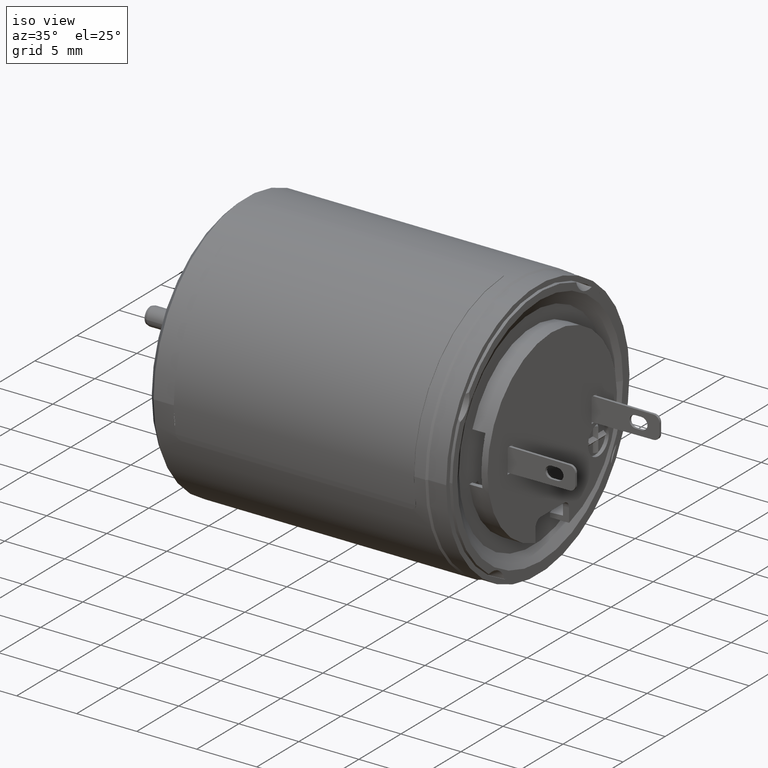
[diagram: clean part render]
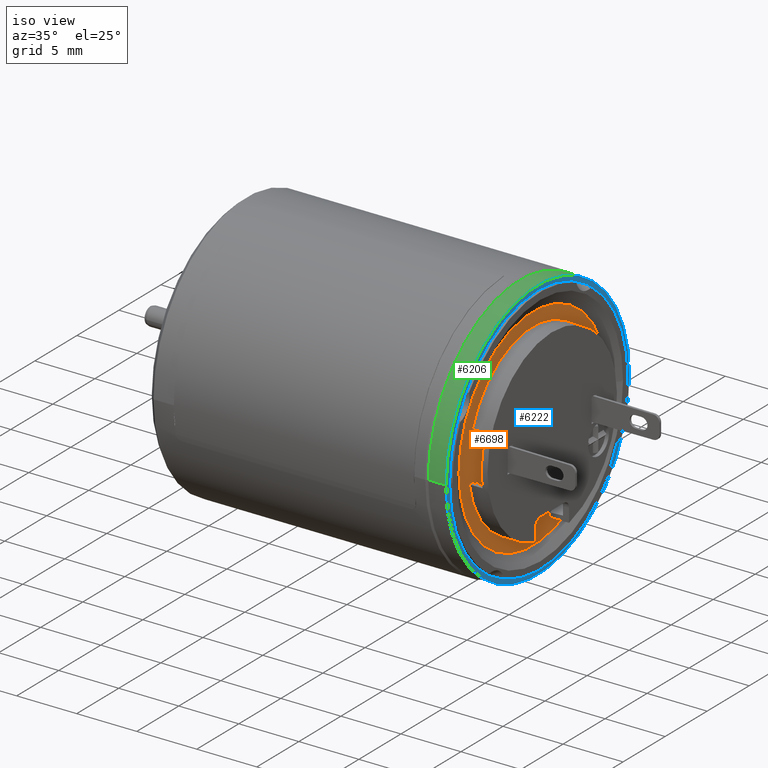
[diagram: same view with three faces highlighted in distinct colors, each labeled with its STEP entity id]
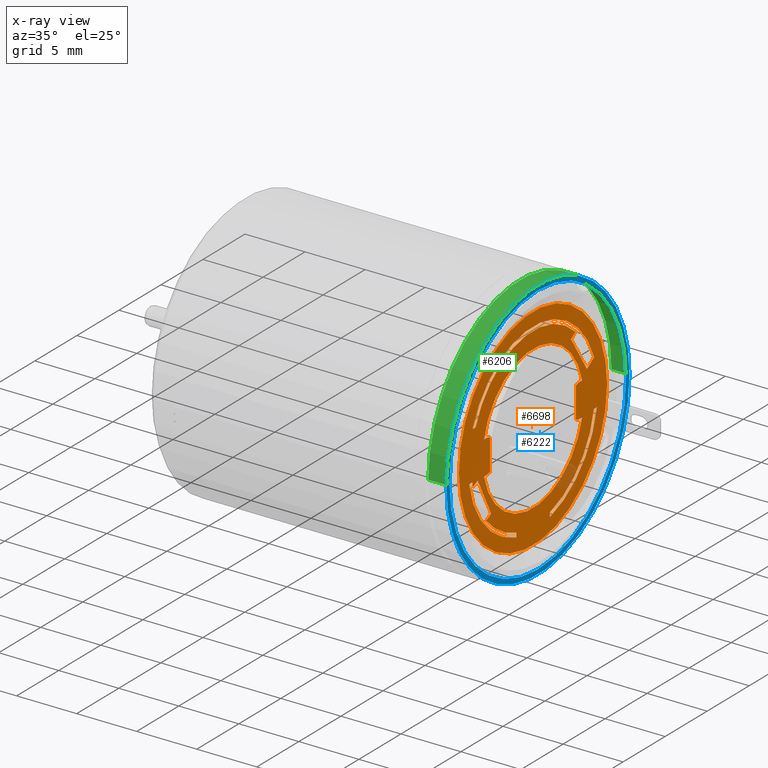
[diagram: x-ray of the same camera — body ghosted, the three highlighted faces saturated]
A machine part, iso view with three faces highlighted in distinct colors.
The next image is the same camera in x-ray (body ghosted, the three faces saturated) — at least one of them is partly hidden behind the body in this view.
Their STEP definitions:

[orange] entity #6698 — the highlighted planar face has unit normal (1, 0, 0).
#961=CARTESIAN_POINT('',(8.5E0,1.120551821217E-14,0.E0));
#962=DIRECTION('',(-1.E0,0.E0,0.E0));
#963=DIRECTION('',(0.E0,-1.E0,0.E0));
#964=AXIS2_PLACEMENT_3D('',#961,#962,#963);
#966=CARTESIAN_POINT('',(8.5E0,1.120551821217E-14,0.E0));
#967=DIRECTION('',(-1.E0,0.E0,0.E0));
#968=DIRECTION('',(0.E0,1.E0,0.E0));
#969=AXIS2_PLACEMENT_3D('',#966,#967,#968);
#971=CARTESIAN_POINT('',(8.5E0,1.044976660676E-13,0.E0));
#972=DIRECTION('',(1.E0,-1.005529260564E-14,0.E0));
#973=DIRECTION('',(0.E0,9.728982300885E-1,2.312337213528E-1));
#974=AXIS2_PLACEMENT_3D('',#971,#972,#973);
#976=CARTESIAN_POINT('',(8.5E0,-5.65E0,0.E0));
#977=DIRECTION('',(-1.E0,0.E0,0.E0));
#978=DIRECTION('',(0.E0,-1.338495575221E-1,9.910016629406E-1));
#979=AXIS2_PLACEMENT_3D('',#976,#977,#978);
#981=DIRECTION('',(0.E0,1.E0,8.696237837936E-13));
#982=VECTOR('',#981,3.038475772916E-2);
#983=CARTESIAN_POINT('',(8.5E0,-5.130384757729E0,1.3E0));
#984=LINE('',#983,#982);
#985=DIRECTION('',(0.E0,0.E0,-1.E0));
#986=VECTOR('',#985,2.6E0);
#987=CARTESIAN_POINT('',(8.5E0,-5.1E0,1.3E0));
#988=LINE('',#987,#986);
#989=CARTESIAN_POINT('',(8.5E0,-5.65E0,0.E0));
#990=DIRECTION('',(-1.E0,0.E0,0.E0));
#991=DIRECTION('',(0.E0,3.711537444793E-1,-9.285714285713E-1));
#992=AXIS2_PLACEMENT_3D('',#989,#990,#991);
#994=CARTESIAN_POINT('',(8.5E0,-5.65E0,0.E0));
#995=DIRECTION('',(-1.E0,0.E0,0.E0));
#996=DIRECTION('',(0.E0,0.E0,-1.E0));
#997=AXIS2_PLACEMENT_3D('',#994,#995,#996);
#999=CARTESIAN_POINT('',(8.5E0,1.044976660676E-13,0.E0));
#1000=DIRECTION('',(1.E0,-1.005529260564E-14,0.E0));
#1001=DIRECTION('',(0.E0,-9.728982300885E-1,-2.312337213528E-1));
#1002=AXIS2_PLACEMENT_3D('',#999,#1000,#1001);
#1004=CARTESIAN_POINT('',(8.5E0,5.65E0,0.E0));
#1005=DIRECTION('',(-1.E0,0.E0,0.E0));
#1006=DIRECTION('',(0.E0,1.338495575222E-1,-9.910016629406E-1));
#1007=AXIS2_PLACEMENT_3D('',#1004,#1005,#1006);
#1009=CARTESIAN_POINT('',(8.5E0,5.65E0,0.E0));
#1010=DIRECTION('',(-1.E0,0.E0,0.E0));
#1011=DIRECTION('',(0.E0,0.E0,-1.E0));
#1012=AXIS2_PLACEMENT_3D('',#1009,#1010,#1011);
#1014=CARTESIAN_POINT('',(8.5E0,5.65E0,0.E0));
#1015=DIRECTION('',(-1.E0,0.E0,0.E0));
#1016=DIRECTION('',(0.E0,-3.711537444793E-1,9.285714285713E-1));
#1017=AXIS2_PLACEMENT_3D('',#1014,#1015,#1016);
#1019=CARTESIAN_POINT('',(8.5E0,1.120551821220E-14,0.E0));
#1020=DIRECTION('',(1.E0,0.E0,0.E0));
#1021=DIRECTION('',(0.E0,2.597402597403E-1,-9.656785166245E-1));
#1022=AXIS2_PLACEMENT_3D('',#1019,#1020,#1021);
#1024=DIRECTION('',(0.E0,-1.E0,0.E0));
#1025=VECTOR('',#1024,3.475748986508E-1);
#1026=CARTESIAN_POINT('',(8.5E0,7.589466384404E0,-1.3E0));
#1027=LINE('',#1026,#1025);
#1028=CARTESIAN_POINT('',(8.5E0,0.E0,0.E0));
#1029=DIRECTION('',(1.E0,0.E0,0.E0));
#1030=DIRECTION('',(0.E0,2.718259759825E-1,-9.623464234781E-1));
#1031=AXIS2_PLACEMENT_3D('',#1028,#1029,#1030);
#1033=DIRECTION('',(0.E0,0.E0,-1.E0));
#1034=VECTOR('',#1033,3.551178037676E-1);
#1035=CARTESIAN_POINT('',(8.5E0,2.E0,-7.080606774241E0));
#1036=LINE('',#1035,#1034);
#1037=CARTESIAN_POINT('',(8.5E0,1.120551821220E-14,0.E0));
#1038=DIRECTION('',(1.E0,0.E0,0.E0));
#1039=DIRECTION('',(0.E0,9.365068247958E-1,3.506493506494E-1));
#1040=AXIS2_PLACEMENT_3D('',#1037,#1038,#1039);
#1042=DIRECTION('',(0.E0,1.E0,1.331919927738E-14));
#1043=VECTOR('',#1042,3.667623861329E-1);
#1044=CARTESIAN_POINT('',(8.5E0,-7.211102550928E0,2.7E0));
#1045=LINE('',#1044,#1043);
#1046=CARTESIAN_POINT('',(8.5E0,0.E0,0.E0));
#1047=DIRECTION('',(1.E0,0.E0,0.E0));
#1048=DIRECTION('',(0.E0,6.884869095566E-1,7.252487679199E-1));
#1049=AXIS2_PLACEMENT_3D('',#1046,#1047,#1048);
#1051=DIRECTION('',(0.E0,8.412277974367E-1,5.406808604157E-1));
#1052=VECTOR('',#1051,5.936586777669E-2);
#1053=CARTESIAN_POINT('',(8.5E0,5.015704498565E0,5.304027562436E0));
#1054=LINE('',#1053,#1052);
#1055=DIRECTION('',(0.E0,-8.412277974359E-1,-5.406808604169E-1));
#1056=VECTOR('',#1055,5.871362340511E-1);
#1057=CARTESIAN_POINT('',(8.5E0,5.015704498565E0,5.304027562436E0));
#1058=LINE('',#1057,#1056);
#1059=DIRECTION('',(0.E0,5.406808604177E-1,-8.412277974354E-1));
#1060=VECTOR('',#1059,3.5E0);
#1061=CARTESIAN_POINT('',(8.5E0,4.521789177599E0,4.986574238227E0));
#1062=LINE('',#1061,#1060);
#1063=DIRECTION('',(0.E0,8.412277974357E-1,5.406808604172E-1));
#1064=VECTOR('',#1063,9.984998499699E-1);
#1065=CARTESIAN_POINT('',(8.5E0,6.414172189061E0,2.042276947203E0));
#1066=LINE('',#1065,#1064);
#1067=CARTESIAN_POINT('',(8.5E0,0.E0,0.E0));
#1068=DIRECTION('',(1.E0,0.E0,0.E0));
#1069=DIRECTION('',(0.E0,9.420958465703E-1,3.353437279495E-1));
#1070=AXIS2_PLACEMENT_3D('',#1067,#1068,#1069);
#1072=CARTESIAN_POINT('',(8.5E0,1.120551821220E-14,0.E0));
#1073=DIRECTION('',(1.E0,0.E0,0.E0));
#1074=DIRECTION('',(0.E0,-9.856449849875E-1,-1.688311688312E-1));
#1075=AXIS2_PLACEMENT_3D('',#1072,#1073,#1074);
#1077=DIRECTION('',(0.E0,0.E0,1.E0));
#1078=VECTOR('',#1077,3.551178037676E-1);
#1079=CARTESIAN_POINT('',(8.5E0,-2.E0,-7.435724578009E0));
#1080=LINE('',#1079,#1078);
#1081=CARTESIAN_POINT('',(8.5E0,0.E0,0.E0));
#1082=DIRECTION('',(1.E0,0.E0,0.E0));
#1083=DIRECTION('',(0.E0,-7.563155603722E-1,-6.542069803502E-1));
#1084=AXIS2_PLACEMENT_3D('',#1081,#1082,#1083);
#1086=DIRECTION('',(0.E0,-8.902128046112E-1,-4.555449072334E-1));
#1087=VECTOR('',#1086,2.314629271805E-1);
#1088=CARTESIAN_POINT('',(8.5E0,-5.35865283E0,-4.707983287400E0));
#1089=LINE('',#1088,#1087);
#1090=DIRECTION('',(0.E0,8.902128046106E-1,4.555449072346E-1));
#1091=VECTOR('',#1090,4.150391746472E-1);
#1092=CARTESIAN_POINT('',(8.5E0,-5.35865283E0,-4.707983287400E0));
#1093=LINE('',#1092,#1091);
#1094=DIRECTION('',(0.E0,-4.555449072335E-1,8.902128046111E-1));
#1095=VECTOR('',#1094,3.5E0);
#1096=CARTESIAN_POINT('',(8.5E0,-4.989179642314E0,-4.518914305087E0));
#1097=LINE('',#1096,#1095);
#1098=DIRECTION('',(0.E0,-8.902128046109E-1,-4.555449072340E-1));
#1099=VECTOR('',#1098,5.871362340511E-1);
#1100=CARTESIAN_POINT('',(8.5E0,-6.583586817631E0,-1.403169488948E0));
#1101=LINE('',#1100,#1099);
#1102=DIRECTION('',(0.E0,8.902128046114E-1,4.555449072330E-1));
#1103=VECTOR('',#1102,5.936586777664E-2);
#1104=CARTESIAN_POINT('',(8.5E0,-7.159111266886E0,-1.697680228952E0));
#1105=LINE('',#1104,#1103);
#1106=CARTESIAN_POINT('',(8.5E0,0.E0,0.E0));
#1107=DIRECTION('',(1.E0,0.E0,0.E0));
#1108=DIRECTION('',(0.E0,-9.842671105371E-1,-1.766868843886E-1));
#1109=AXIS2_PLACEMENT_3D('',#1106,#1107,#1108);
#1111=DIRECTION('',(0.E0,-1.E0,0.E0));
#1112=VECTOR('',#1111,3.475748986507E-1);
#1113=CARTESIAN_POINT('',(8.5E0,-7.241891485753E0,-1.3E0));
#1114=LINE('',#1113,#1112);
#3726=DIRECTION('',(0.E0,1.E0,1.103472196243E-12));
#3727=VECTOR('',#3726,3.038475772914E-2);
#3728=CARTESIAN_POINT('',(8.5E0,5.1E0,-1.3E0));
#3729=LINE('',#3728,#3727);
#3738=DIRECTION('',(0.E0,0.E0,-1.E0));
#3739=VECTOR('',#3738,2.6E0);
#3740=CARTESIAN_POINT('',(8.5E0,5.1E0,1.3E0));
#3741=LINE('',#3740,#3739);
#3758=DIRECTION('',(0.E0,-1.E0,4.238502475643E-13));
#3759=VECTOR('',#3758,3.038475772908E-2);
#3760=CARTESIAN_POINT('',(8.5E0,5.130384757729E0,1.3E0));
#3761=LINE('',#3760,#3759);
#3809=DIRECTION('',(0.E0,1.E0,1.753863093367E-13));
#3810=VECTOR('',#3809,3.038475772913E-2);
#3811=CARTESIAN_POINT('',(8.5E0,-5.130384757729E0,-1.3E0));
#3812=LINE('',#3811,#3810);
#4384=CARTESIAN_POINT('',(8.5E0,-5.837389380531E0,1.387402328117E0));
#4385=CARTESIAN_POINT('',(8.5E0,-5.130384757729E0,1.3E0));
#4386=VERTEX_POINT('',#4384);
#4387=VERTEX_POINT('',#4385);
#4388=CARTESIAN_POINT('',(8.5E0,-5.1E0,1.3E0));
#4389=VERTEX_POINT('',#4388);
#4390=CARTESIAN_POINT('',(8.5E0,-5.1E0,-1.3E0));
#4391=VERTEX_POINT('',#4390);
#4392=CARTESIAN_POINT('',(8.5E0,-5.130384757729E0,-1.3E0));
#4393=VERTEX_POINT('',#4392);
#4394=CARTESIAN_POINT('',(8.5E0,-5.65E0,-1.4E0));
#4395=VERTEX_POINT('',#4394);
#4396=CARTESIAN_POINT('',(8.5E0,-5.837389380531E0,-1.387402328117E0));
#4397=VERTEX_POINT('',#4396);
#4398=CARTESIAN_POINT('',(8.5E0,5.837389380531E0,-1.387402328117E0));
#4399=CARTESIAN_POINT('',(8.5E0,5.65E0,-1.4E0));
#4400=VERTEX_POINT('',#4398);
#4401=VERTEX_POINT('',#4399);
#4402=CARTESIAN_POINT('',(8.5E0,5.130384757729E0,-1.3E0));
#4403=VERTEX_POINT('',#4402);
#4404=CARTESIAN_POINT('',(8.5E0,5.1E0,-1.3E0));
#4405=VERTEX_POINT('',#4404);
#4406=CARTESIAN_POINT('',(8.5E0,5.1E0,1.3E0));
#4407=VERTEX_POINT('',#4406);
#4408=CARTESIAN_POINT('',(8.5E0,5.130384757729E0,1.3E0));
#4409=VERTEX_POINT('',#4408);
#4410=CARTESIAN_POINT('',(8.5E0,5.837389380531E0,1.387402328117E0));
#4411=VERTEX_POINT('',#4410);
#4412=CARTESIAN_POINT('',(8.5E0,4.521789177599E0,4.986574238227E0));
#4413=CARTESIAN_POINT('',(8.5E0,6.414172189061E0,2.042276947203E0));
#4414=VERTEX_POINT('',#4412);
#4415=VERTEX_POINT('',#4413);
#4416=CARTESIAN_POINT('',(8.5E0,7.254138018591E0,2.582146705211E0));
#4417=VERTEX_POINT('',#4416);
#4418=CARTESIAN_POINT('',(8.5E0,-4.989179642314E0,-4.518914305087E0));
#4419=CARTESIAN_POINT('',(8.5E0,-6.583586817631E0,-1.403169488948E0));
#4420=VERTEX_POINT('',#4418);
#4421=VERTEX_POINT('',#4419);
#4422=CARTESIAN_POINT('',(8.5E0,8.810769515459E0,0.E0));
#4424=VERTEX_POINT('',#4422);
#4426=CARTESIAN_POINT('',(8.5E0,-8.810769515459E0,0.E0));
#4427=VERTEX_POINT('',#4426);
#5036=CARTESIAN_POINT('',(8.5E0,2.E0,-7.435724578009E0));
#5037=CARTESIAN_POINT('',(8.5E0,7.589466384404E0,-1.3E0));
#5038=VERTEX_POINT('',#5036);
#5039=VERTEX_POINT('',#5037);
#5040=CARTESIAN_POINT('',(8.5E0,7.211102550928E0,2.7E0));
#5041=CARTESIAN_POINT('',(8.5E0,-7.211102550928E0,2.7E0));
#5042=VERTEX_POINT('',#5040);
#5043=VERTEX_POINT('',#5041);
#5044=CARTESIAN_POINT('',(8.5E0,-7.589466384404E0,-1.3E0));
#5045=CARTESIAN_POINT('',(8.5E0,-2.E0,-7.435724578009E0));
#5046=VERTEX_POINT('',#5044);
#5047=VERTEX_POINT('',#5045);
#5048=CARTESIAN_POINT('',(8.5E0,-5.564704091569E0,-4.813425045091E0));
#5049=CARTESIAN_POINT('',(8.5E0,-2.E0,-7.080606774241E0));
#5050=VERTEX_POINT('',#5048);
#5051=VERTEX_POINT('',#5049);
#5052=CARTESIAN_POINT('',(8.5E0,-7.241891485753E0,-1.3E0));
#5053=CARTESIAN_POINT('',(8.5E0,-7.159111266886E0,-1.697680228952E0));
#5054=VERTEX_POINT('',#5052);
#5055=VERTEX_POINT('',#5053);
#5056=CARTESIAN_POINT('',(8.5E0,5.065644716757E0,5.336125550904E0));
#5057=CARTESIAN_POINT('',(8.5E0,-6.844340164795E0,2.7E0));
#5058=VERTEX_POINT('',#5056);
#5059=VERTEX_POINT('',#5057);
#5060=CARTESIAN_POINT('',(8.5E0,2.E0,-7.080606774241E0));
#5061=CARTESIAN_POINT('',(8.5E0,7.241891485753E0,-1.3E0));
#5062=VERTEX_POINT('',#5060);
#5063=VERTEX_POINT('',#5061);
#5064=CARTESIAN_POINT('',(8.5E0,-5.35865283E0,-4.707983287400E0));
#5065=VERTEX_POINT('',#5064);
#5066=CARTESIAN_POINT('',(8.5E0,-7.106263011234E0,-1.670636410222E0));
#5067=VERTEX_POINT('',#5066);
#5068=CARTESIAN_POINT('',(8.5E0,5.015704498565E0,5.304027562436E0));
#5069=VERTEX_POINT('',#5068);
#6609=CARTESIAN_POINT('',(8.5E0,1.065814103640E-14,0.E0));
#6610=DIRECTION('',(1.E0,0.E0,0.E0));
#6611=DIRECTION('',(0.E0,1.E0,0.E0));
#6612=AXIS2_PLACEMENT_3D('',#6609,#6610,#6611);
#6613=PLANE('',#6612);
#6614=ORIENTED_EDGE('',*,*,#6602,.T.);
#6615=ORIENTED_EDGE('',*,*,#6591,.T.);
#6616=EDGE_LOOP('',(#6614,#6615));
#6617=FACE_OUTER_BOUND('',#6616,.F.);
#6619=ORIENTED_EDGE('',*,*,#6618,.T.);
#6621=ORIENTED_EDGE('',*,*,#6620,.T.);
#6623=ORIENTED_EDGE('',*,*,#6622,.T.);
#6625=ORIENTED_EDGE('',*,*,#6624,.T.);
#6627=ORIENTED_EDGE('',*,*,#6626,.F.);
#6629=ORIENTED_EDGE('',*,*,#6628,.T.);
#6631=ORIENTED_EDGE('',*,*,#6630,.T.);
#6633=ORIENTED_EDGE('',*,*,#6632,.T.);
#6635=ORIENTED_EDGE('',*,*,#6634,.T.);
#6637=ORIENTED_EDGE('',*,*,#6636,.T.);
#6639=ORIENTED_EDGE('',*,*,#6638,.F.);
#6641=ORIENTED_EDGE('',*,*,#6640,.F.);
#6643=ORIENTED_EDGE('',*,*,#6642,.F.);
#6645=ORIENTED_EDGE('',*,*,#6644,.T.);
#6646=EDGE_LOOP('',(#6619,#6621,#6623,#6625,#6627,#6629,#6631,#6633,#6635,#6637,
#6639,#6641,#6643,#6645));
#6647=FACE_BOUND('',#6646,.F.);
#6649=ORIENTED_EDGE('',*,*,#6648,.T.);
#6651=ORIENTED_EDGE('',*,*,#6650,.T.);
#6653=ORIENTED_EDGE('',*,*,#6652,.F.);
#6655=ORIENTED_EDGE('',*,*,#6654,.T.);
#6656=EDGE_LOOP('',(#6649,#6651,#6653,#6655));
#6657=FACE_BOUND('',#6656,.F.);
#6659=ORIENTED_EDGE('',*,*,#6658,.T.);
#6661=ORIENTED_EDGE('',*,*,#6660,.T.);
#6663=ORIENTED_EDGE('',*,*,#6662,.F.);
#6665=ORIENTED_EDGE('',*,*,#6664,.F.);
#6667=ORIENTED_EDGE('',*,*,#6666,.T.);
#6669=ORIENTED_EDGE('',*,*,#6668,.T.);
#6671=ORIENTED_EDGE('',*,*,#6670,.T.);
#6673=ORIENTED_EDGE('',*,*,#6672,.T.);
#6674=EDGE_LOOP('',(#6659,#6661,#6663,#6665,#6667,#6669,#6671,#6673));
#6675=FACE_BOUND('',#6674,.F.);
#6677=ORIENTED_EDGE('',*,*,#6676,.T.);
#6679=ORIENTED_EDGE('',*,*,#6678,.T.);
#6681=ORIENTED_EDGE('',*,*,#6680,.F.);
#6683=ORIENTED_EDGE('',*,*,#6682,.F.);
#6685=ORIENTED_EDGE('',*,*,#6684,.T.);
#6687=ORIENTED_EDGE('',*,*,#6686,.T.);
#6689=ORIENTED_EDGE('',*,*,#6688,.T.);
#6691=ORIENTED_EDGE('',*,*,#6690,.F.);
#6693=ORIENTED_EDGE('',*,*,#6692,.F.);
#6695=ORIENTED_EDGE('',*,*,#6694,.T.);
#6696=EDGE_LOOP('',(#6677,#6679,#6681,#6683,#6685,#6687,#6689,#6691,#6693,
#6695));
#6697=FACE_BOUND('',#6696,.F.);
#6698=ADVANCED_FACE('',(#6617,#6647,#6657,#6675,#6697),#6613,.T.);
#965=CIRCLE('',#964,8.810769515459E0);
#970=CIRCLE('',#969,8.810769515459E0);
#975=CIRCLE('',#974,6.E0);
#980=CIRCLE('',#979,1.4E0);
#993=CIRCLE('',#992,1.4E0);
#998=CIRCLE('',#997,1.4E0);
#1003=CIRCLE('',#1002,6.E0);
#1008=CIRCLE('',#1007,1.4E0);
#1013=CIRCLE('',#1012,1.4E0);
#1018=CIRCLE('',#1017,1.4E0);
#1023=CIRCLE('',#1022,7.7E0);
#1032=CIRCLE('',#1031,7.357648557211E0);
#1041=CIRCLE('',#1040,7.7E0);
#1050=CIRCLE('',#1049,7.357648557211E0);
#1071=CIRCLE('',#1070,7.7E0);
#1076=CIRCLE('',#1075,7.7E0);
#1085=CIRCLE('',#1084,7.357648557211E0);
#1110=CIRCLE('',#1109,7.357648557211E0);
#6591=EDGE_CURVE('',#4424,#4427,#970,.T.);
#6602=EDGE_CURVE('',#4427,#4424,#965,.T.);
#6618=EDGE_CURVE('',#4411,#4386,#975,.T.);
#6620=EDGE_CURVE('',#4386,#4387,#980,.T.);
#6622=EDGE_CURVE('',#4387,#4389,#984,.T.);
#6624=EDGE_CURVE('',#4389,#4391,#988,.T.);
#6626=EDGE_CURVE('',#4393,#4391,#3812,.T.);
#6628=EDGE_CURVE('',#4393,#4395,#993,.T.);
#6630=EDGE_CURVE('',#4395,#4397,#998,.T.);
#6632=EDGE_CURVE('',#4397,#4400,#1003,.T.);
#6634=EDGE_CURVE('',#4400,#4401,#1008,.T.);
#6636=EDGE_CURVE('',#4401,#4403,#1013,.T.);
#6638=EDGE_CURVE('',#4405,#4403,#3729,.T.);
#6640=EDGE_CURVE('',#4407,#4405,#3741,.T.);
#6642=EDGE_CURVE('',#4409,#4407,#3761,.T.);
#6644=EDGE_CURVE('',#4409,#4411,#1018,.T.);
#6648=EDGE_CURVE('',#5038,#5039,#1023,.T.);
#6650=EDGE_CURVE('',#5039,#5063,#1027,.T.);
#6652=EDGE_CURVE('',#5062,#5063,#1032,.T.);
#6654=EDGE_CURVE('',#5062,#5038,#1036,.T.);
#6658=EDGE_CURVE('',#5042,#5043,#1041,.T.);
#6660=EDGE_CURVE('',#5043,#5059,#1045,.T.);
#6662=EDGE_CURVE('',#5058,#5059,#1050,.T.);
#6664=EDGE_CURVE('',#5069,#5058,#1054,.T.);
#6666=EDGE_CURVE('',#5069,#4414,#1058,.T.);
#6668=EDGE_CURVE('',#4414,#4415,#1062,.T.);
#6670=EDGE_CURVE('',#4415,#4417,#1066,.T.);
#6672=EDGE_CURVE('',#4417,#5042,#1071,.T.);
#6676=EDGE_CURVE('',#5046,#5047,#1076,.T.);
#6678=EDGE_CURVE('',#5047,#5051,#1080,.T.);
#6680=EDGE_CURVE('',#5050,#5051,#1085,.T.);
#6682=EDGE_CURVE('',#5065,#5050,#1089,.T.);
#6684=EDGE_CURVE('',#5065,#4420,#1093,.T.);
#6686=EDGE_CURVE('',#4420,#4421,#1097,.T.);
#6688=EDGE_CURVE('',#4421,#5067,#1101,.T.);
#6690=EDGE_CURVE('',#5055,#5067,#1105,.T.);
#6692=EDGE_CURVE('',#5054,#5055,#1110,.T.);
#6694=EDGE_CURVE('',#5054,#5046,#1114,.T.);

[blue] entity #6222 — the highlighted planar face has unit normal (1, 0, 0).
#623=CARTESIAN_POINT('',(8.9E0,1.115653234024E-14,0.E0));
#624=DIRECTION('',(-1.E0,0.E0,0.E0));
#625=DIRECTION('',(0.E0,-1.E0,0.E0));
#626=AXIS2_PLACEMENT_3D('',#623,#624,#625);
#628=CARTESIAN_POINT('',(8.9E0,1.115653234024E-14,0.E0));
#629=DIRECTION('',(-1.E0,0.E0,0.E0));
#630=DIRECTION('',(0.E0,1.E0,0.E0));
#631=AXIS2_PLACEMENT_3D('',#628,#629,#630);
#633=CARTESIAN_POINT('',(8.9E0,1.115653234024E-14,0.E0));
#634=DIRECTION('',(1.E0,0.E0,0.E0));
#635=DIRECTION('',(0.E0,-1.E0,0.E0));
#636=AXIS2_PLACEMENT_3D('',#633,#634,#635);
#638=CARTESIAN_POINT('',(8.9E0,1.115653234024E-14,0.E0));
#639=DIRECTION('',(1.E0,0.E0,0.E0));
#640=DIRECTION('',(0.E0,1.E0,0.E0));
#641=AXIS2_PLACEMENT_3D('',#638,#639,#640);
#4234=CARTESIAN_POINT('',(8.9E0,1.05E1,0.E0));
#4235=VERTEX_POINT('',#4234);
#4236=CARTESIAN_POINT('',(8.9E0,-1.05E1,0.E0));
#4237=VERTEX_POINT('',#4236);
#4238=CARTESIAN_POINT('',(8.9E0,1.09E1,0.E0));
#4240=VERTEX_POINT('',#4238);
#4242=CARTESIAN_POINT('',(8.9E0,-1.09E1,0.E0));
#4243=VERTEX_POINT('',#4242);
#6207=CARTESIAN_POINT('',(8.9E0,1.065814103640E-14,0.E0));
#6208=DIRECTION('',(1.E0,0.E0,0.E0));
#6209=DIRECTION('',(0.E0,1.E0,0.E0));
#6210=AXIS2_PLACEMENT_3D('',#6207,#6208,#6209);
#6211=PLANE('',#6210);
#6212=ORIENTED_EDGE('',*,*,#6200,.T.);
#6213=ORIENTED_EDGE('',*,*,#6189,.T.);
#6214=EDGE_LOOP('',(#6212,#6213));
#6215=FACE_OUTER_BOUND('',#6214,.F.);
#6217=ORIENTED_EDGE('',*,*,#6216,.T.);
#6219=ORIENTED_EDGE('',*,*,#6218,.T.);
#6220=EDGE_LOOP('',(#6217,#6219));
#6221=FACE_BOUND('',#6220,.F.);
#6222=ADVANCED_FACE('',(#6215,#6221),#6211,.T.);
#627=CIRCLE('',#626,1.09E1);
#632=CIRCLE('',#631,1.09E1);
#637=CIRCLE('',#636,1.05E1);
#642=CIRCLE('',#641,1.05E1);
#6189=EDGE_CURVE('',#4240,#4243,#632,.T.);
#6200=EDGE_CURVE('',#4243,#4240,#627,.T.);
#6216=EDGE_CURVE('',#4237,#4235,#637,.T.);
#6218=EDGE_CURVE('',#4235,#4237,#642,.T.);

[green] entity #6206 — the highlighted cylindrical surface (partial cylindrical patch) has radius 10.9 mm, axis along (-1, 0, 0).
#601=CARTESIAN_POINT('',(7.4E0,0.E0,0.E0));
#602=DIRECTION('',(1.E0,0.E0,0.E0));
#603=DIRECTION('',(0.E0,1.E0,0.E0));
#604=AXIS2_PLACEMENT_3D('',#601,#602,#603);
#615=DIRECTION('',(-1.E0,-1.480297366167E-13,0.E0));
#616=VECTOR('',#615,1.5E0);
#617=CARTESIAN_POINT('',(8.9E0,1.09E1,0.E0));
#618=LINE('',#617,#616);
#619=DIRECTION('',(1.E0,-1.219765029721E-13,0.E0));
#620=VECTOR('',#619,1.5E0);
#621=CARTESIAN_POINT('',(7.4E0,-1.09E1,0.E0));
#622=LINE('',#621,#620);
#623=CARTESIAN_POINT('',(8.9E0,1.115653234024E-14,0.E0));
#624=DIRECTION('',(-1.E0,0.E0,0.E0));
#625=DIRECTION('',(0.E0,-1.E0,0.E0));
#626=AXIS2_PLACEMENT_3D('',#623,#624,#625);
#4238=CARTESIAN_POINT('',(8.9E0,1.09E1,0.E0));
#4239=CARTESIAN_POINT('',(7.4E0,1.09E1,0.E0));
#4240=VERTEX_POINT('',#4238);
#4241=VERTEX_POINT('',#4239);
#4242=CARTESIAN_POINT('',(8.9E0,-1.09E1,0.E0));
#4243=VERTEX_POINT('',#4242);
#4244=CARTESIAN_POINT('',(7.4E0,-1.09E1,0.E0));
#4245=VERTEX_POINT('',#4244);
#6194=CARTESIAN_POINT('',(8.948501975218E0,1.115059256137E-14,0.E0));
#6195=DIRECTION('',(-1.E0,0.E0,0.E0));
#6196=DIRECTION('',(0.E0,1.E0,0.E0));
#6197=AXIS2_PLACEMENT_3D('',#6194,#6195,#6196);
#6198=CYLINDRICAL_SURFACE('',#6197,1.09E1);
#6199=ORIENTED_EDGE('',*,*,#6184,.F.);
#6201=ORIENTED_EDGE('',*,*,#6200,.F.);
#6202=ORIENTED_EDGE('',*,*,#6187,.F.);
#6203=ORIENTED_EDGE('',*,*,#6158,.F.);
#6204=EDGE_LOOP('',(#6199,#6201,#6202,#6203));
#6205=FACE_OUTER_BOUND('',#6204,.F.);
#6206=ADVANCED_FACE('',(#6205),#6198,.T.);
#605=CIRCLE('',#604,1.09E1);
#627=CIRCLE('',#626,1.09E1);
#6158=EDGE_CURVE('',#4241,#4245,#605,.T.);
#6184=EDGE_CURVE('',#4240,#4241,#618,.T.);
#6187=EDGE_CURVE('',#4245,#4243,#622,.T.);
#6200=EDGE_CURVE('',#4243,#4240,#627,.T.);